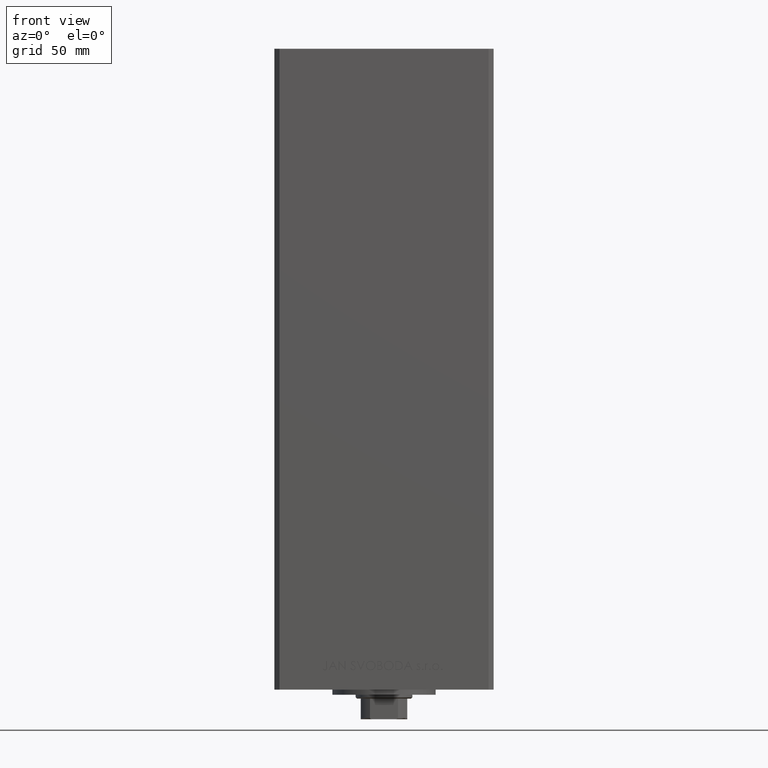
[diagram: clean part render]
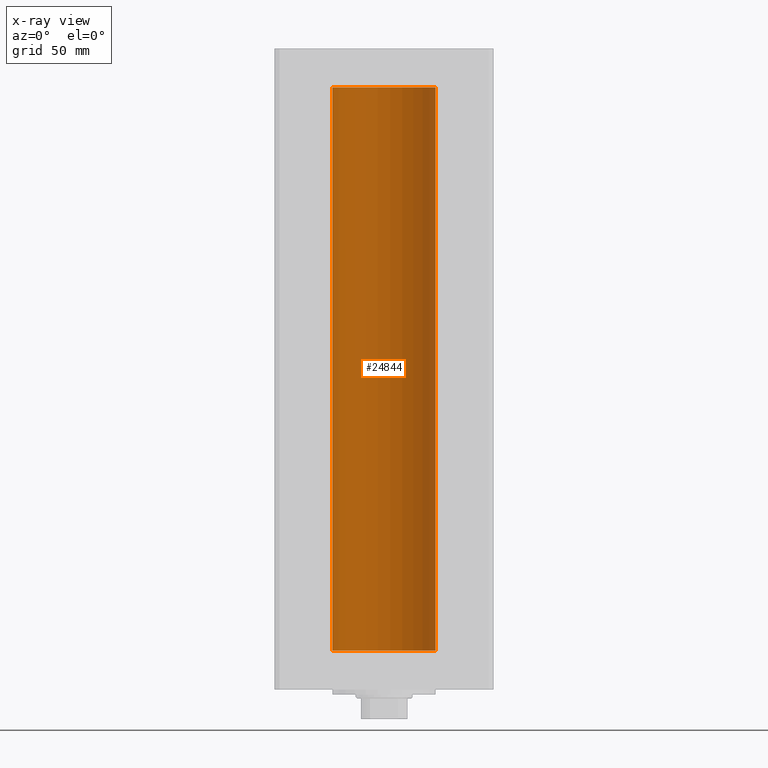
[diagram: x-ray — body ghosted, one internal face saturated and labeled with its STEP entity id]
A machine part, front view, then the same camera in x-ray: the body is ghosted and one INTERNAL B-rep face — a face not visible from any outside direction — is saturated and labeled: STEP entity #24844.
In plain terms, the highlighted cylindrical surface (partial cylindrical patch) has radius 20 mm, axis along (-0, -0, -1).
Its self-contained STEP definition (entity closure, byte-faithful):
#295 = CIRCLE ( 'NONE', #21583, 20.00000000000000000 ) ;
#348 = EDGE_CURVE ( 'NONE', #23051, #31018, #295, .T. ) ;
#1109 = EDGE_CURVE ( 'NONE', #39382, #33642, #14480, .T. ) ;
#3109 = DIRECTION ( 'NONE',  ( -0.000000000000000000, -0.000000000000000000, -1.000000000000000000 ) ) ;
#3154 = EDGE_CURVE ( 'NONE', #33642, #31018, #9662, .T. ) ;
#9662 = LINE ( 'NONE', #10158, #13778 ) ;
#10158 = CARTESIAN_POINT ( 'NONE',  ( -20.00000000000000000, 0.000000000000000000, 218.5000000000000000 ) ) ;
#13778 = VECTOR ( 'NONE', #25250, 1000.000000000000000 ) ;
#14480 = CIRCLE ( 'NONE', #22416, 20.00000000000000000 ) ;
#14709 = DIRECTION ( 'NONE',  ( -1.000000000000000000, 0.000000000000000000, 0.000000000000000000 ) ) ;
#15821 = AXIS2_PLACEMENT_3D ( 'NONE', #18427, #3109, #14709 ) ;
#17342 = CARTESIAN_POINT ( 'NONE',  ( -20.00000000000000000, 0.000000000000000000, 218.5000000000000000 ) ) ;
#17498 = ORIENTED_EDGE ( 'NONE', *, *, #3154, .T. ) ;
#18427 = CARTESIAN_POINT ( 'NONE',  ( 0.000000000000000000, 0.000000000000000000, 218.5000000000000000 ) ) ;
#19953 = CARTESIAN_POINT ( 'NONE',  ( -20.00000000000000000, 0.000000000000000000, 0.000000000000000000 ) ) ;
#21583 = AXIS2_PLACEMENT_3D ( 'NONE', #48634, #41214, #41717 ) ;
#21652 = CYLINDRICAL_SURFACE ( 'NONE', #15821, 20.00000000000000000 ) ;
#22416 = AXIS2_PLACEMENT_3D ( 'NONE', #42564, #42081, #31149 ) ;
#23051 = VERTEX_POINT ( 'NONE', #36169 ) ;
#24844 = ADVANCED_FACE ( 'NONE', ( #40489 ), #21652, .F. ) ;
#24960 = EDGE_CURVE ( 'NONE', #39382, #23051, #35002, .T. ) ;
#25245 = CARTESIAN_POINT ( 'NONE',  ( 20.00000000000000000, 2.449293598294706513E-15, 218.5000000000000000 ) ) ;
#25250 = DIRECTION ( 'NONE',  ( -0.000000000000000000, -0.000000000000000000, -1.000000000000000000 ) ) ;
#30055 = VECTOR ( 'NONE', #35242, 1000.000000000000000 ) ;
#31018 = VERTEX_POINT ( 'NONE', #19953 ) ;
#31149 = DIRECTION ( 'NONE',  ( 1.000000000000000000, 0.000000000000000000, 0.000000000000000000 ) ) ;
#31467 = EDGE_LOOP ( 'NONE', ( #36408, #37248, #17498, #42075 ) ) ;
#31525 = CARTESIAN_POINT ( 'NONE',  ( 20.00000000000000000, 2.449293598294706513E-15, 218.5000000000000000 ) ) ;
#33642 = VERTEX_POINT ( 'NONE', #17342 ) ;
#35002 = LINE ( 'NONE', #31525, #30055 ) ;
#35242 = DIRECTION ( 'NONE',  ( -0.000000000000000000, -0.000000000000000000, -1.000000000000000000 ) ) ;
#36169 = CARTESIAN_POINT ( 'NONE',  ( 20.00000000000000000, 2.449293598294706513E-15, 0.000000000000000000 ) ) ;
#36408 = ORIENTED_EDGE ( 'NONE', *, *, #24960, .F. ) ;
#37248 = ORIENTED_EDGE ( 'NONE', *, *, #1109, .T. ) ;
#39382 = VERTEX_POINT ( 'NONE', #25245 ) ;
#40489 = FACE_OUTER_BOUND ( 'NONE', #31467, .T. ) ;
#41214 = DIRECTION ( 'NONE',  ( -0.000000000000000000, 0.000000000000000000, 1.000000000000000000 ) ) ;
#41717 = DIRECTION ( 'NONE',  ( 1.000000000000000000, 0.000000000000000000, 0.000000000000000000 ) ) ;
#42075 = ORIENTED_EDGE ( 'NONE', *, *, #348, .F. ) ;
#42081 = DIRECTION ( 'NONE',  ( -0.000000000000000000, 0.000000000000000000, 1.000000000000000000 ) ) ;
#42564 = CARTESIAN_POINT ( 'NONE',  ( 0.000000000000000000, 0.000000000000000000, 218.5000000000000000 ) ) ;
#48634 = CARTESIAN_POINT ( 'NONE',  ( 0.000000000000000000, 0.000000000000000000, 0.000000000000000000 ) ) ;